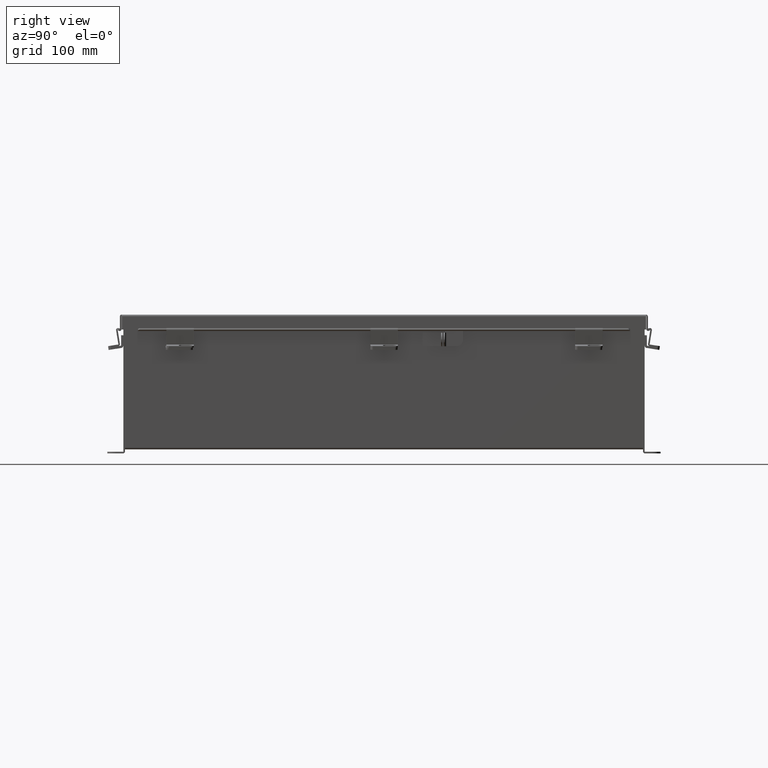
[diagram: clean part render]
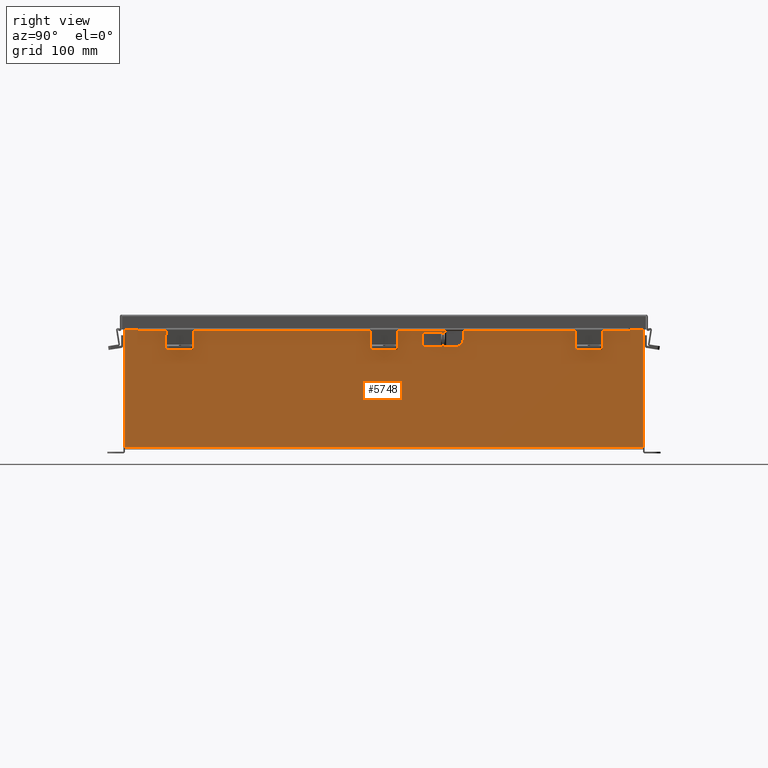
[diagram: same view with one face highlighted and labeled with its STEP entity id]
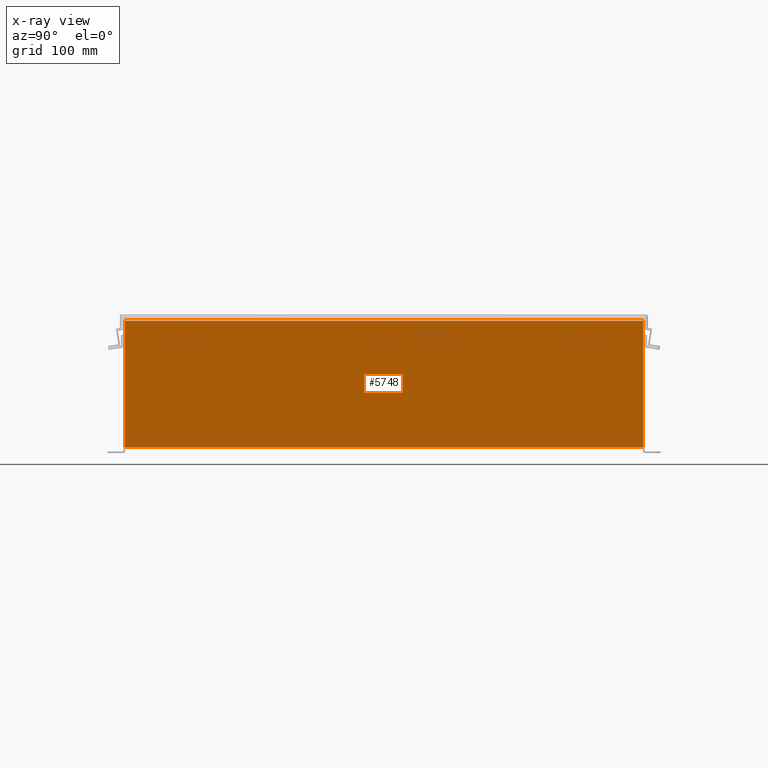
[diagram: x-ray of the same camera — body ghosted, the highlighted face saturated]
A machine part, right view. The second image highlights one B-rep face of the part: STEP entity #5748.
The next image is the same camera in x-ray: the body ghosted, the highlighted face saturated — about 0% of this face is hidden behind the body in this view.
In plain terms, the highlighted planar face has unit normal (-1, 0, 0).
Its self-contained STEP definition (entity closure, byte-faithful):
#1083 = ORIENTED_EDGE ( 'NONE', *, *, #23693, .T. ) ;
#2364 = VECTOR ( 'NONE', #21492, 39.37007874015748100 ) ;
#3780 = ORIENTED_EDGE ( 'NONE', *, *, #12945, .T. ) ;
#4445 = DIRECTION ( 'NONE',  ( -0.0000000000000000000, -1.000000000000000000, -0.0000000000000000000 ) ) ;
#4917 = CARTESIAN_POINT ( 'NONE',  ( 10.00000000000000000, 0.0000000000000000000, -3.388345214641706500E-014 ) ) ;
#5468 = EDGE_LOOP ( 'NONE', ( #18701, #1083, #22752, #3780 ) ) ;
#5681 = CARTESIAN_POINT ( 'NONE',  ( 10.00000000000001800, 11.92529999999998900, 5.837599999999999200 ) ) ;
#5748 = ADVANCED_FACE ( 'NONE', ( #17082 ), #8720, .F. ) ;
#5828 = LINE ( 'NONE', #7939, #10311 ) ;
#6703 = VERTEX_POINT ( 'NONE', #20689 ) ;
#6790 = VERTEX_POINT ( 'NONE', #5681 ) ;
#7385 = LINE ( 'NONE', #9964, #2364 ) ;
#7705 = AXIS2_PLACEMENT_3D ( 'NONE', #4917, #10664, #24094 ) ;
#7939 = CARTESIAN_POINT ( 'NONE',  ( 10.00000000000000000, -11.92530000000000000, -3.388345214641706500E-014 ) ) ;
#8720 = PLANE ( 'NONE',  #7705 ) ;
#9844 = DIRECTION ( 'NONE',  ( -3.361929640444176300E-015, 0.0000000000000000000, -1.000000000000000000 ) ) ;
#9964 = CARTESIAN_POINT ( 'NONE',  ( 10.00000000000000000, -11.92530000000000000, 0.01299999999999985900 ) ) ;
#10311 = VECTOR ( 'NONE', #9844, 39.37007874015748100 ) ;
#10664 = DIRECTION ( 'NONE',  ( -1.000000000000000000, 0.0000000000000000000, 3.361929640444175900E-015 ) ) ;
#11343 = VERTEX_POINT ( 'NONE', #19024 ) ;
#12945 = EDGE_CURVE ( 'NONE', #23820, #6790, #24454, .T. ) ;
#13247 = DIRECTION ( 'NONE',  ( 3.361929640444176300E-015, -3.735477378271307500E-016, 1.000000000000000000 ) ) ;
#15924 = CARTESIAN_POINT ( 'NONE',  ( 10.00000000000000000, 11.92529999999999300, 0.01299999999999985900 ) ) ;
#16891 = VECTOR ( 'NONE', #4445, 39.37007874015748100 ) ;
#17082 = FACE_OUTER_BOUND ( 'NONE', #5468, .T. ) ;
#17456 = EDGE_CURVE ( 'NONE', #6790, #6703, #21976, .T. ) ;
#17835 = CARTESIAN_POINT ( 'NONE',  ( 10.00000000000001800, 11.92529999999999300, 5.837599999999999200 ) ) ;
#18701 = ORIENTED_EDGE ( 'NONE', *, *, #17456, .T. ) ;
#19024 = CARTESIAN_POINT ( 'NONE',  ( 10.00000000000000000, -11.92530000000000000, 0.01299999999999985900 ) ) ;
#19394 = VECTOR ( 'NONE', #13247, 39.37007874015748100 ) ;
#20689 = CARTESIAN_POINT ( 'NONE',  ( 10.00000000000002000, -11.92530000000000000, 5.837599999999999200 ) ) ;
#21492 = DIRECTION ( 'NONE',  ( -0.0000000000000000000, -1.000000000000000000, -0.0000000000000000000 ) ) ;
#21850 = EDGE_CURVE ( 'NONE', #23820, #11343, #7385, .T. ) ;
#21976 = LINE ( 'NONE', #17835, #16891 ) ;
#22752 = ORIENTED_EDGE ( 'NONE', *, *, #21850, .F. ) ;
#23693 = EDGE_CURVE ( 'NONE', #6703, #11343, #5828, .T. ) ;
#23820 = VERTEX_POINT ( 'NONE', #15924 ) ;
#24094 = DIRECTION ( 'NONE',  ( 3.361929640444175900E-015, 0.0000000000000000000, 1.000000000000000000 ) ) ;
#24454 = LINE ( 'NONE', #24784, #19394 ) ;
#24784 = CARTESIAN_POINT ( 'NONE',  ( 10.00000000000000000, 11.92529999999999600, -2.942712510675223700E-014 ) ) ;